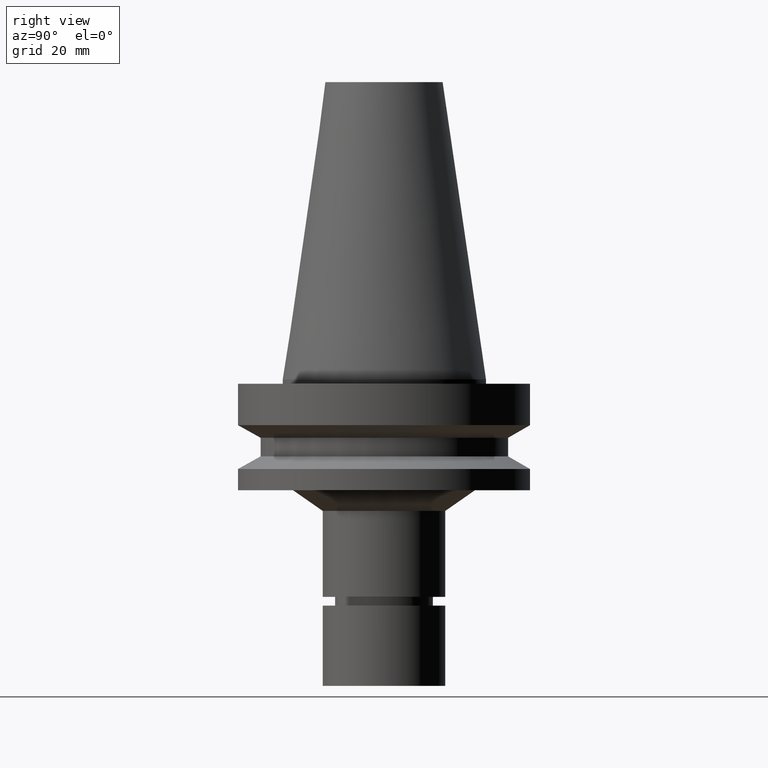
[diagram: clean part render]
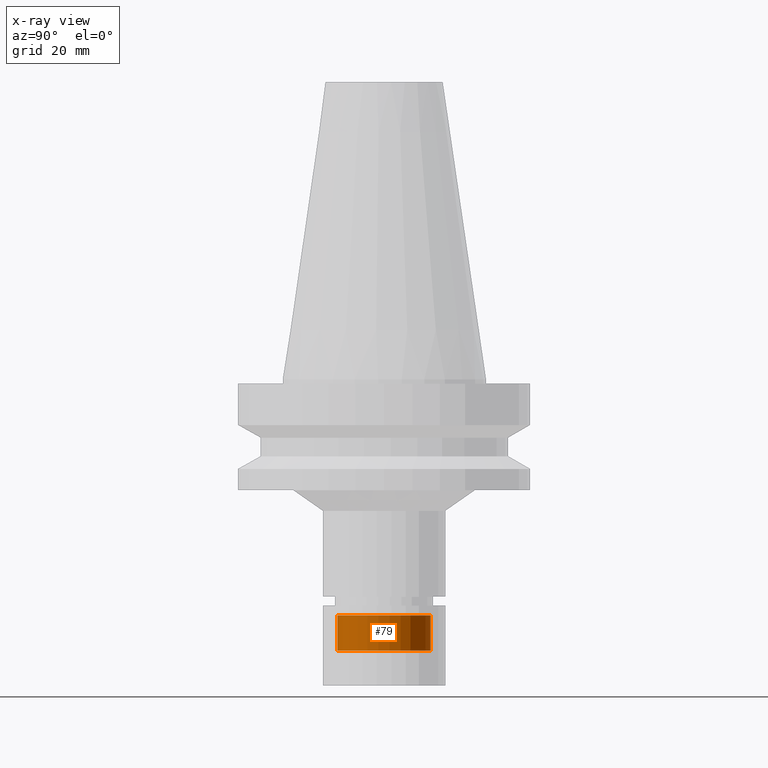
[diagram: x-ray — body ghosted, one internal face saturated and labeled with its STEP entity id]
A machine part, right view, then the same camera in x-ray: the body is ghosted and one INTERNAL B-rep face — a face not visible from any outside direction — is saturated and labeled: STEP entity #79.
In plain terms, the highlighted cylindrical surface (bore or boss wall) has radius 16 mm, axis along (-0, 0, 1).
Its self-contained STEP definition (entity closure, byte-faithful):
#79=ADVANCED_FACE('Unnamed[1]',(#207,#208),#209,.T.);
#108=EDGE_CURVE('Unnamed[1]',#252,#252,#253,.T.);
#128=EDGE_CURVE('Unnamed[1]',#282,#282,#283,.T.);
#207=FACE_BOUND('',#384,.T.);
#208=FACE_BOUND('',#385,.T.);
#209=CYLINDRICAL_SURFACE('',#386,16.0);
#252=VERTEX_POINT('',#441);
#253=CIRCLE('',#442,16.0);
#282=VERTEX_POINT('',#480);
#283=CIRCLE('',#481,16.0);
#384=EDGE_LOOP('',(#587));
#385=EDGE_LOOP('',(#588));
#386=AXIS2_PLACEMENT_3D('',#589,#590,#591);
#441=CARTESIAN_POINT('',(4.95371697258611E-015,16.0,-80.9003375672901));
#442=AXIS2_PLACEMENT_3D('',#638,#639,#640);
#480=CARTESIAN_POINT('',(5.68816255169872E-015,16.0,-92.8947441116744));
#481=AXIS2_PLACEMENT_3D('',#670,#671,#672);
#587=ORIENTED_EDGE('',*,*,#108,.F.);
#588=ORIENTED_EDGE('',*,*,#128,.T.);
#589=CARTESIAN_POINT('',(5.32093976214242E-015,1.29839434826625E-014,-86.8975408394823));
#590=DIRECTION('',(-6.12323399573677E-017,1.40684069939021E-019,1.0));
#591=DIRECTION('',(-4.81853831597193E-033,1.0,-1.40684069939021E-019));
#638=CARTESIAN_POINT('',(4.95371697258611E-015,1.29847871936271E-014,-80.9003375672901));
#639=DIRECTION('',(-6.12323399573677E-017,1.40684069939021E-019,1.0));
#640=DIRECTION('',(-4.81853831597193E-033,1.0,-1.40684069939021E-019));
#670=CARTESIAN_POINT('',(5.68816255169872E-015,1.29830997716979E-014,-92.8947441116744));
#671=DIRECTION('',(-6.12323399573677E-017,1.40684069939021E-019,1.0));
#672=DIRECTION('',(-4.81853831597193E-033,1.0,-1.40684069939021E-019));